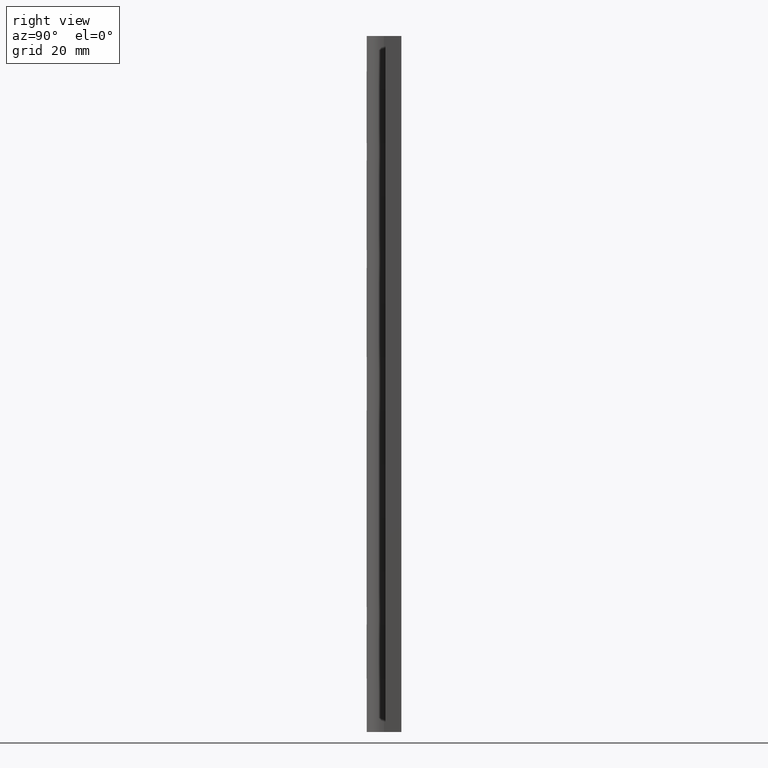
[diagram: clean part render]
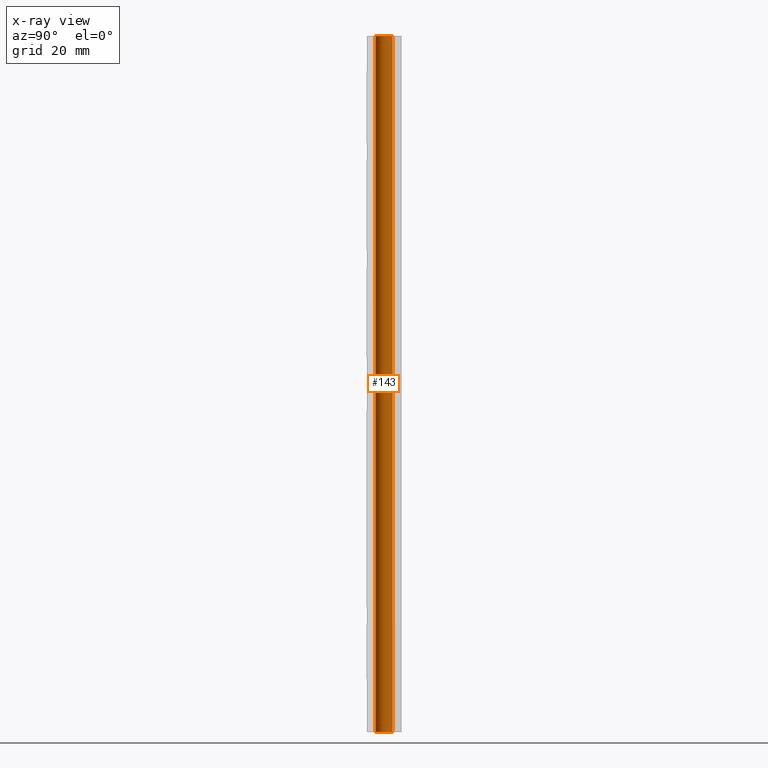
[diagram: x-ray — body ghosted, one internal face saturated and labeled with its STEP entity id]
A machine part, right view, then the same camera in x-ray: the body is ghosted and one INTERNAL B-rep face — a face not visible from any outside direction — is saturated and labeled: STEP entity #143.
In plain terms, the highlighted face is a freeform B-spline surface patch.
Its self-contained STEP definition (entity closure, byte-faithful):
#12=CARTESIAN_POINT('',(0.097677663882499,-1.597015677436655,-8.881784E-016));
#13=VERTEX_POINT('',#12);
#27=CARTESIAN_POINT('',(-1.600000000000000,0.0,0.0));
#28=VERTEX_POINT('',#27);
#29=CARTESIAN_POINT('',(0.097677663882499,-1.597015677436655,0.0));
#30=CARTESIAN_POINT('',(0.048884421591985,-1.599999999999999,0.0));
#31=CARTESIAN_POINT('',(0.0,-1.600000000000000,0.0));
#32=CARTESIAN_POINT('',(-1.600000000000000,-1.600000000000000,0.0));
#33=CARTESIAN_POINT('',(-1.600000000000000,0.0,0.0));
#41=(BOUNDED_CURVE()B_SPLINE_CURVE(2,(#29,#30,#31,#32,#33),.UNSPECIFIED.,.F.,.U.)B_SPLINE_CURVE_WITH_KNOTS((3,2,3),(0.239332962174255,0.250000000000000,0.500000000000000),.UNSPECIFIED.)CURVE()GEOMETRIC_REPRESENTATION_ITEM()RATIONAL_B_SPLINE_CURVE((0.976072041528078,0.987502787824050,1.0,0.707106781186548,1.0))REPRESENTATION_ITEM(''));
#42=EDGE_CURVE('',#13,#28,#41,.T.);
#44=CARTESIAN_POINT('',(-0.097677663882499,1.597015677436655,-8.881784E-016));
#45=VERTEX_POINT('',#44);
#46=CARTESIAN_POINT('',(-1.600000000000000,0.0,0.0));
#47=CARTESIAN_POINT('',(-1.600000000000001,1.505129706457340,0.0));
#48=CARTESIAN_POINT('',(-0.097677663882499,1.597015677436655,0.0));
#56=(BOUNDED_CURVE()B_SPLINE_CURVE(2,(#46,#47,#48),.UNSPECIFIED.,.F.,.U.)B_SPLINE_CURVE_WITH_KNOTS((3,3),(0.500000000000000,0.739332962174255),.UNSPECIFIED.)CURVE()GEOMETRIC_REPRESENTATION_ITEM()RATIONAL_B_SPLINE_CURVE((1.0,0.719603993362497,0.976072041528078))REPRESENTATION_ITEM(''));
#57=EDGE_CURVE('',#28,#45,#56,.T.);
#77=CARTESIAN_POINT('',(0.097677663255771,-1.597015677474987,133.249991800000090));
#78=CARTESIAN_POINT('',(-1.499338014219216,-1.694693340730757,133.249991800000060));
#79=CARTESIAN_POINT('',(-1.597015677474987,-0.097677663255771,133.249991800000090));
#80=CARTESIAN_POINT('',(-1.694693340730757,1.499338014219216,133.249991800000060));
#81=CARTESIAN_POINT('',(-0.097677663255771,1.597015677474987,133.249991800000090));
#82=CARTESIAN_POINT('',(0.097677663255771,-1.597015677474987,-3.331249794999991));
#83=CARTESIAN_POINT('',(-1.499338014219216,-1.694693340730757,-3.331249794999991));
#84=CARTESIAN_POINT('',(-1.597015677474987,-0.097677663255771,-3.331249794999991));
#85=CARTESIAN_POINT('',(-1.694693340730757,1.499338014219216,-3.331249794999991));
#86=CARTESIAN_POINT('',(-0.097677663255771,1.597015677474987,-3.331249794999991));
#94=(BOUNDED_SURFACE()B_SPLINE_SURFACE(2,1,((#77,#82),(#78,#83),(#79,#84),(#80,#85),(#81,#86)),.UNSPECIFIED.,.F.,.F.,.U.)B_SPLINE_SURFACE_WITH_KNOTS((3,2,3),(2,2),(3.141592653589793,4.712388980384690,6.283185307179586),(0.0,136.581241595000110),.UNSPECIFIED.)GEOMETRIC_REPRESENTATION_ITEM()RATIONAL_B_SPLINE_SURFACE(((1.0,1.0),(0.707106781186548,0.707106781186548),(1.0,1.0),(0.707106781186548,0.707106781186548),(1.0,1.0)))REPRESENTATION_ITEM('')SURFACE());
#95=ORIENTED_EDGE('',*,*,#42,.F.);
#96=CARTESIAN_POINT('',(0.097677663882499,-1.597015677436655,129.999991999999990));
#97=VERTEX_POINT('',#96);
#98=CARTESIAN_POINT('',(0.097677663882499,-1.597015677436655,129.999991999999990));
#99=CARTESIAN_POINT('',(0.097677663882499,-1.597015677436655,-8.881784E-016));
#100=QUASI_UNIFORM_CURVE('',1,(#98,#99),.UNSPECIFIED.,.F.,.U.);
#101=EDGE_CURVE('',#97,#13,#100,.T.);
#102=ORIENTED_EDGE('',*,*,#101,.F.);
#103=CARTESIAN_POINT('',(-1.600000000000000,0.0,129.999991999999990));
#104=VERTEX_POINT('',#103);
#105=CARTESIAN_POINT('',(0.097677663882499,-1.597015677436655,129.999992000000050));
#106=CARTESIAN_POINT('',(0.048884421591985,-1.600000000000000,129.999992000000080));
#107=CARTESIAN_POINT('',(0.0,-1.600000000000000,129.999991999999990));
#108=CARTESIAN_POINT('',(-1.600000000000000,-1.600000000000000,129.999992000000020));
#109=CARTESIAN_POINT('',(-1.600000000000000,0.0,129.999991999999990));
#117=(BOUNDED_CURVE()B_SPLINE_CURVE(2,(#105,#106,#107,#108,#109),.UNSPECIFIED.,.F.,.U.)B_SPLINE_CURVE_WITH_KNOTS((3,2,3),(0.239332962174255,0.250000000000000,0.500000000000000),.UNSPECIFIED.)CURVE()GEOMETRIC_REPRESENTATION_ITEM()RATIONAL_B_SPLINE_CURVE((0.976072041528078,0.987502787824050,1.0,0.707106781186548,1.0))REPRESENTATION_ITEM(''));
#118=EDGE_CURVE('',#97,#104,#117,.T.);
#119=ORIENTED_EDGE('',*,*,#118,.T.);
#120=CARTESIAN_POINT('',(-0.097677663882499,1.597015677436655,129.999991999999990));
#121=VERTEX_POINT('',#120);
#122=CARTESIAN_POINT('',(-1.600000000000000,0.0,129.999991999999990));
#123=CARTESIAN_POINT('',(-1.600000000000001,1.505129706457340,129.999992000000020));
#124=CARTESIAN_POINT('',(-0.097677663882499,1.597015677436655,129.999992000000050));
#132=(BOUNDED_CURVE()B_SPLINE_CURVE(2,(#122,#123,#124),.UNSPECIFIED.,.F.,.U.)B_SPLINE_CURVE_WITH_KNOTS((3,3),(0.500000000000000,0.739332962174255),.UNSPECIFIED.)CURVE()GEOMETRIC_REPRESENTATION_ITEM()RATIONAL_B_SPLINE_CURVE((1.0,0.719603993362497,0.976072041528078))REPRESENTATION_ITEM(''));
#133=EDGE_CURVE('',#104,#121,#132,.T.);
#134=ORIENTED_EDGE('',*,*,#133,.T.);
#135=CARTESIAN_POINT('',(-0.097677663882499,1.597015677436655,129.999991999999990));
#136=CARTESIAN_POINT('',(-0.097677663882499,1.597015677436655,-8.881784E-016));
#137=QUASI_UNIFORM_CURVE('',1,(#135,#136),.UNSPECIFIED.,.F.,.U.);
#138=EDGE_CURVE('',#121,#45,#137,.T.);
#139=ORIENTED_EDGE('',*,*,#138,.T.);
#140=ORIENTED_EDGE('',*,*,#57,.F.);
#141=EDGE_LOOP('',(#95,#102,#119,#134,#139,#140));
#142=FACE_OUTER_BOUND('',#141,.T.);
#143=ADVANCED_FACE('',(#142),#94,.T.);